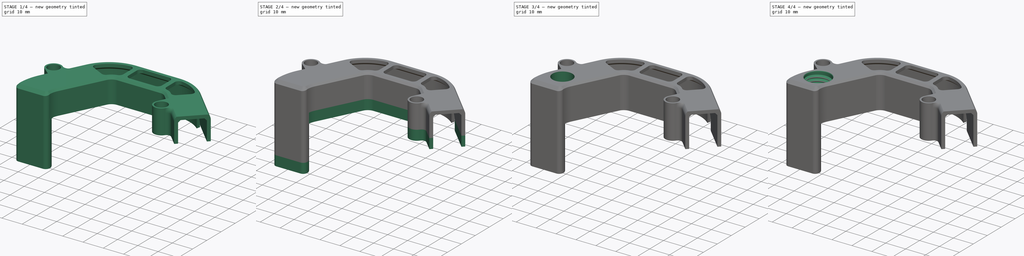
[diagram: build sequence overview — one tinted view per stage of 4, left to right]
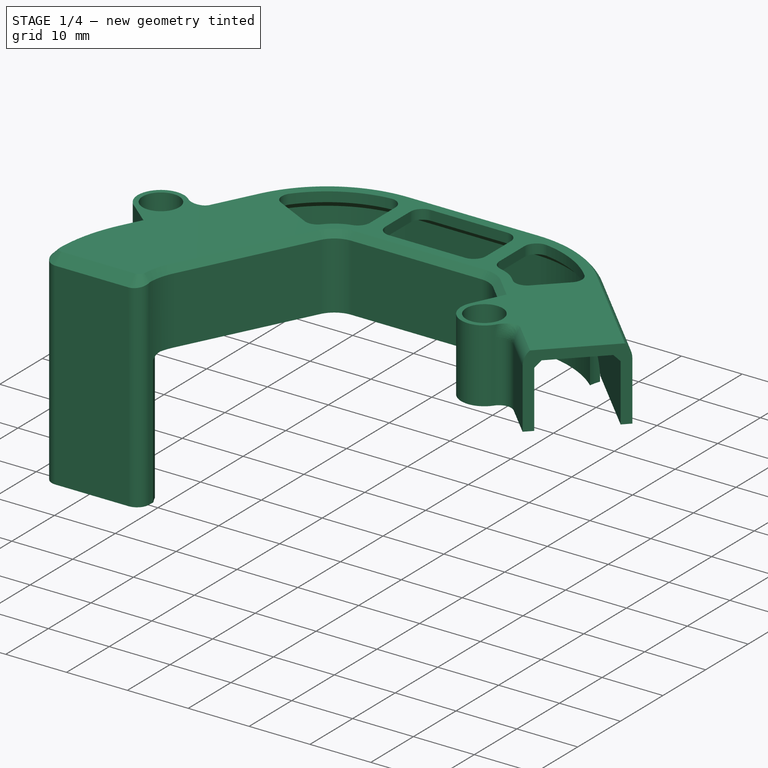
[diagram: stage 1 of 4 — iso view after this stage's code; geometry added in this stage tinted green]
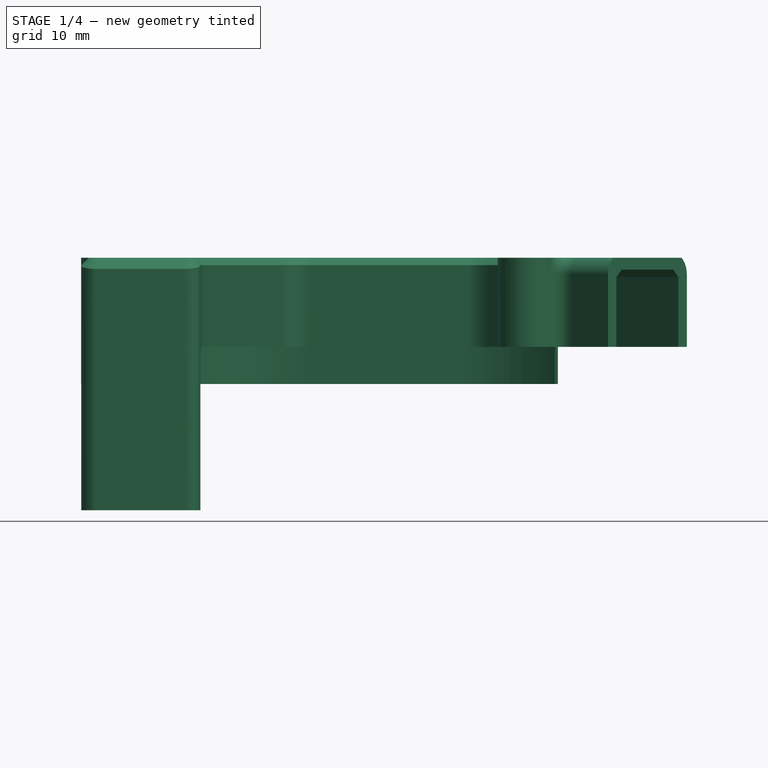
[diagram: stage 1 of 4 — front view after this stage's code; geometry added in this stage tinted green]
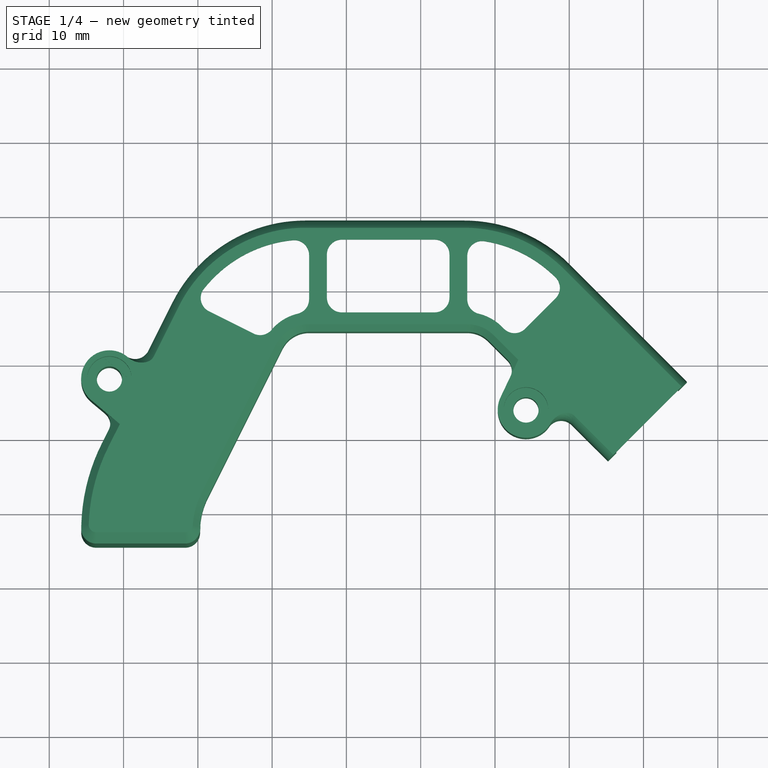
[diagram: stage 1 of 4 — top view after this stage's code; geometry added in this stage tinted green]
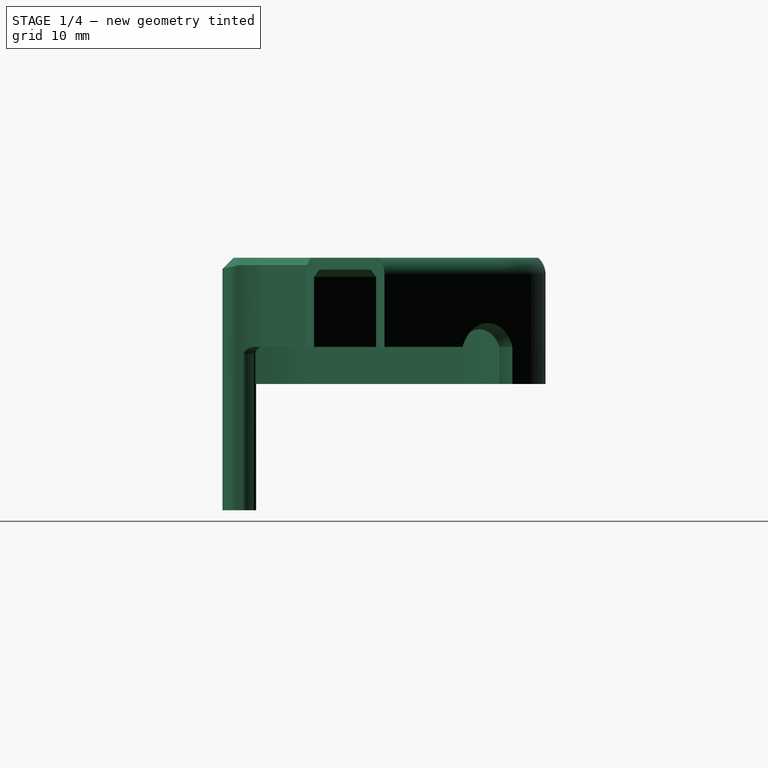
[diagram: stage 1 of 4 — right view after this stage's code; geometry added in this stage tinted green]
FCSTD DOCUMENT  (FreeCAD 0.19R24291 (Git))
Label: [a]_cable_cover_with_gland_mount
License: All rights reserved
LicenseURL: http://en.wikipedia.org/wiki/All_rights_reserved
objects: Sketcher::SketchObject×6, PartDesign::Pad×5, Part::Feature×1, PartDesign::FeatureBase×1, PartDesign::Pocket×1, PartDesign::Fillet×1, PartDesign::Body×1, Part::FeaturePython×1, Part::Cut×1
note: 25 computed .brp shape members not serialized (recipe doc carries the construction recipe); baked Part::Feature solids carry a one-line shape summary decoded from their .brp

FEATURE [Part::Feature] Part__Feature  label="Cable Cover"
  shape: bbox 82.57 x 45.15 x 35.3 mm, 175 faces (baked)
FEATURE [PartDesign::FeatureBase] BaseFeature
  BaseFeature = -> Part__Feature
FEATURE [Sketcher::SketchObject] Sketch
  ExternalGeometry = -> [BaseFeature]
  FullyConstrained = false
  MapMode = 5
  Placement = pos=(-2.443e-13,-1e-14,59) rot=(1,0,0;3.14159rad)
  Support = -> [BaseFeature]
  sketch-geometry (21):
    g0: ArcOfCircle CenterX=238.093 CenterY=-347.72 CenterZ=0 NormalX=0 NormalY=0 NormalZ=1 AngleXU=0 Radius=3.8 StartAngle=2.26666 EndAngle=5.34998
    g1: ArcOfCircle CenterX=236.213 CenterY=-341.733 CenterZ=0 NormalX=0 NormalY=0 NormalZ=1 AngleXU=0 Radius=2 StartAngle=5.40825 EndAngle=6.7475
    g2: ArcOfCircle CenterX=241.546 CenterY=-352.381 CenterZ=0 NormalX=0 NormalY=0 NormalZ=1 AngleXU=0 Radius=2 StartAngle=0.464313 EndAngle=2.20839
    g3: ArcOfCircle CenterX=241.75 CenterY=-358.029 CenterZ=0 NormalX=0 NormalY=0 NormalZ=1 AngleXU=0 Radius=5.13778 StartAngle=6.18844 EndAngle=7.30981
    g4: ArcOfCircle CenterX=264.473 CenterY=-349.03 CenterZ=0 NormalX=0 NormalY=0 NormalZ=1 AngleXU=0 Radius=20 StartAngle=3.63574 EndAngle=4.71239
    g5: ArcOfCircle CenterX=264.473 CenterY=-349.03 CenterZ=0 NormalX=0 NormalY=0 NormalZ=1 AngleXU=0 Radius=18.4 StartAngle=3.60591 EndAngle=4.71239
    g6: ArcOfCircle CenterX=260.301 CenterY=-327.302 CenterZ=0 NormalX=0 NormalY=0 NormalZ=1 AngleXU=0 Radius=26 StartAngle=3.26832 EndAngle=3.60591
    g7: ArcOfCircle CenterX=260.301 CenterY=-327.302 CenterZ=0 NormalX=0 NormalY=0 NormalZ=1 AngleXU=0 Radius=24.4 StartAngle=3.29134 EndAngle=3.60591
    g8: LineSegment StartX=237.054 StartY=-338.945 StartZ=0 EndX=238.002 EndY=-340.838 EndZ=0
    g9: LineSegment StartX=243.334 StartY=-351.485 StartZ=0 EndX=244.41 EndY=-353.634 EndZ=0
    g10: LineSegment StartX=248.021 StartY=-357.27 StartZ=0 EndX=238.484 EndY=-338.228 EndZ=0
    g11: LineSegment StartX=235.657 StartY=-344.804 StartZ=0 EndX=237.495 EndY=-343.268 EndZ=0
    g12: LineSegment StartX=234.509 StartY=-330.588 StartZ=0 EndX=234.373 EndY=-329.242 EndZ=0
    g13: ArcOfCircle CenterX=241.228 CenterY=-329.649 CenterZ=0 NormalX=0 NormalY=0 NormalZ=1 AngleXU=0 Radius=5.21641 StartAngle=3.13616 EndAngle=3.39197
    g14: LineSegment StartX=234.373 StartY=-329.242 StartZ=0 EndX=236.011 EndY=-329.621 EndZ=0
    g15: Circle CenterX=238.093 CenterY=-347.72 CenterZ=0 NormalX=0 NormalY=0 NormalZ=1 AngleXU=0 Radius=1.7
    g16: LineSegment StartX=264.473 StartY=-367.43 StartZ=0 EndX=285.857 EndY=-367.43 EndZ=0
    g17: LineSegment StartX=285.857 StartY=-369.03 StartZ=0 EndX=264.473 EndY=-369.03 EndZ=0
    g18: ArcOfCircle CenterX=285.857 CenterY=-349.03 CenterZ=0 NormalX=0 NormalY=0 NormalZ=1 AngleXU=0 Radius=18.4 StartAngle=4.71239 EndAngle=5.43634
    g19: ArcOfCircle CenterX=285.857 CenterY=-349.03 CenterZ=0 NormalX=0 NormalY=0 NormalZ=1 AngleXU=0 Radius=20 StartAngle=4.71239 EndAngle=5.39427
    g20: ArcOfCircle CenterX=303.173 CenterY=-362.507 CenterZ=0 NormalX=0 NormalY=0 NormalZ=1 AngleXU=0 Radius=5.13778 StartAngle=3.20161 EndAngle=3.55219
  constraints (50):
    c: Coincident(g0,g-3)
    c: Coincident(g0,g-8)
    c: Tangent(g0,g-3)
    c: Coincident(g1,g-4)
    c: Coincident(g1,g-4)
    c: Tangent(g1,g-4)
    c: Coincident(g2,g0)
    c: Coincident(g2,g-9)
    c: Tangent(g2,g-8)
    c: Coincident(g3,g-10)
    c: Coincident(g3,g-11)
    c: Tangent(g3,g-10)
    c: Coincident(g4,g3)
    c: Coincident(g5,g-12)
    c: Coincident(g6,g-5)
    c: Coincident(g6,g-5)
    c: Tangent(g6,g-5)
    c: Coincident(g7,g-7)
    c: Coincident(g7,g-6)
    c: Tangent(g7,g-6)
    c: Coincident(g8,g6)
    c: Coincident(g8,g1)
    c: Coincident(g9,g2)
    c: Coincident(g9,g3)
    c: Coincident(g10,g5)
    c: Coincident(g10,g7)
    c: Tangent(g4,g-11) = -1.5708
    c: Tangent(g5,g-12) = -1.5708
    c: Coincident(g11,g0)
    c: Coincident(g12,g6)
    c: Coincident(g12,g-13)
    c: Coincident(g13,g7)
    c: Coincident(g13,g-14)
    c: Coincident(g14,g12)
    c: Coincident(g14,g13)
    c: Coincident(g11,g1)
    c: Coincident(g15,g0)
    c: Radius(g15) = 1.7
    c: Coincident(g16,g5)
    c: Coincident(g16,g-18)
    c: Coincident(g17,g-19)
    c: Coincident(g17,g4)
    c: Coincident(g18,g16)
    c: Coincident(g18,g-18)
    c: Tangent(g18,g-18)
    c: Coincident(g19,g17)
    c: Coincident(g19,g-19)
    c: Coincident(g20,g19)
    c: Coincident(g20,g18)
    c: Tangent(g20,g-17)
FEATURE [PartDesign::Pad] Pad
  BaseFeature = -> BaseFeature
  Direction = (1,1,1)
  Length = 5
  Length2 = 100
  Profile = -> Sketch
  Type = 0
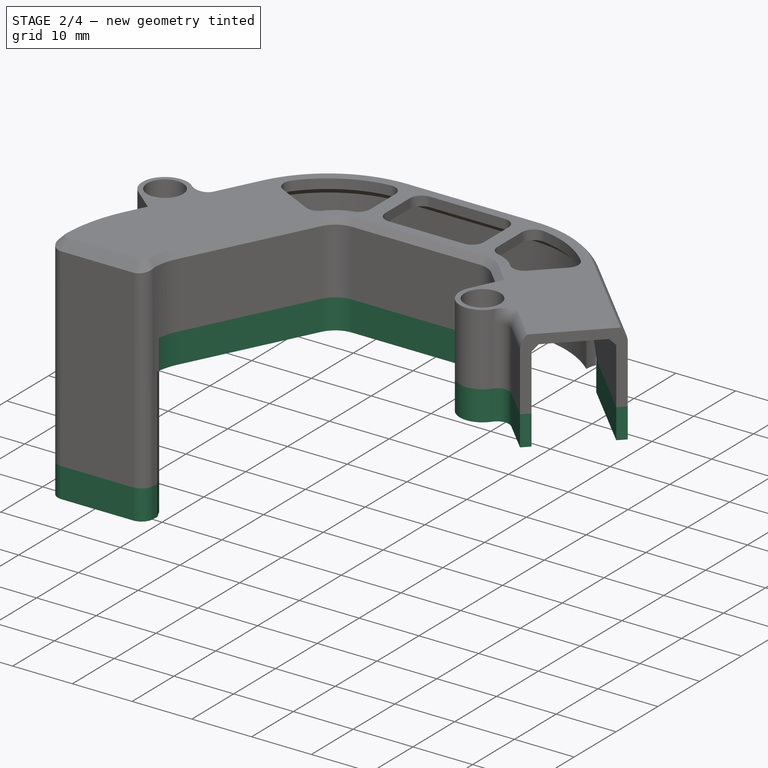
[diagram: stage 2 of 4 — iso view after this stage's code; geometry added in this stage tinted green]
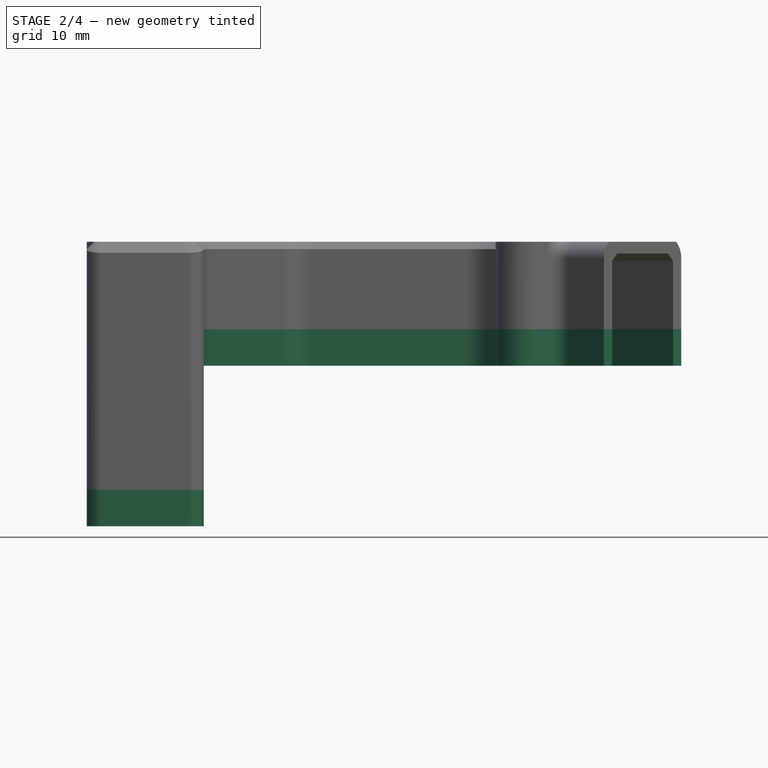
[diagram: stage 2 of 4 — front view after this stage's code; geometry added in this stage tinted green]
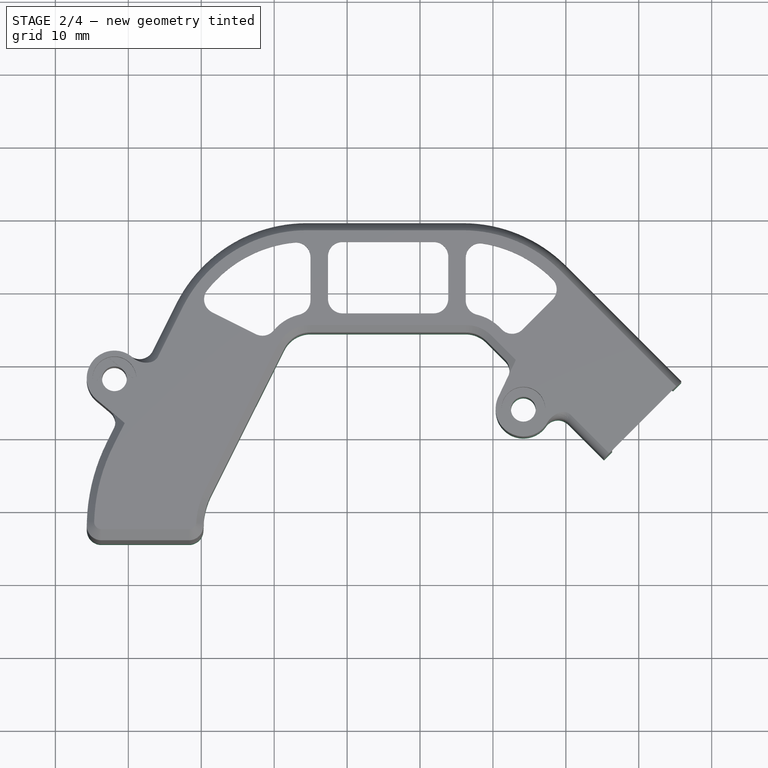
[diagram: stage 2 of 4 — top view after this stage's code; geometry added in this stage tinted green]
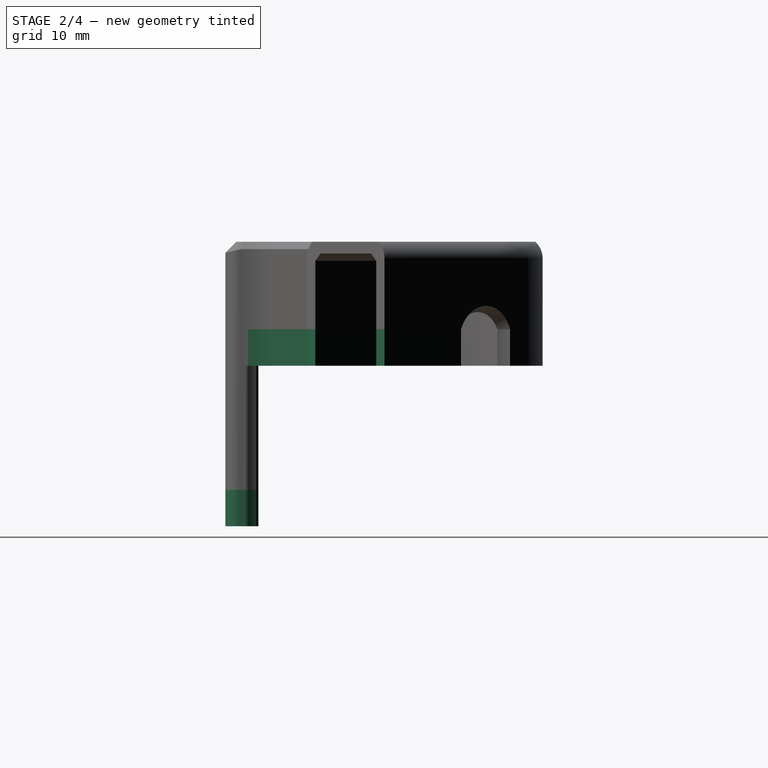
[diagram: stage 2 of 4 — right view after this stage's code; geometry added in this stage tinted green]
FEATURE [Sketcher::SketchObject] Sketch001
  ExternalGeometry = -> [Pad]
  FullyConstrained = true
  MapMode = 5
  Placement = pos=(-2.443e-13,-1e-14,59) rot=(1,0,0;3.14159rad)
  Support = -> [Pad]
  sketch-geometry (4):
    g0: LineSegment StartX=305.329 StartY=-357.843 StartZ=0 EndX=315.828 EndY=-347.343 EndZ=0
    g1: LineSegment StartX=315.828 StartY=-347.343 StartZ=0 EndX=314.697 EndY=-346.212 EndZ=0
    g2: LineSegment StartX=314.697 StartY=-346.212 StartZ=0 EndX=303.528 EndY=-357.381 EndZ=0
    g3: ArcOfCircle CenterX=303.173 CenterY=-362.507 CenterZ=0 NormalX=0 NormalY=0 NormalZ=1 AngleXU=0 Radius=5.13778 StartAngle=1.1379 EndAngle=1.50179
  constraints (9):
    c: Coincident(g0,g-3)
    c: Coincident(g0,g-4)
    c: Coincident(g1,g0)
    c: Coincident(g1,g-4)
    c: Coincident(g2,g1)
    c: Coincident(g2,g-3)
    c: Coincident(g3,g2)
    c: Coincident(g3,g0)
    c: Tangent(g3,g-3)
FEATURE [PartDesign::Pad] Pad001
  BaseFeature = -> Pad
  Direction = (1,1,1)
  Length = 5
  Length2 = 100
  Profile = -> Sketch001
  Type = 0
FEATURE [Sketcher::SketchObject] Sketch002
  ExternalGeometry = -> [Pad001]
  FullyConstrained = false
  MapMode = 5
  Placement = pos=(-2.443e-13,-1e-14,59) rot=(1,0,0;3.14159rad)
  Support = -> [Pad001]
  sketch-geometry (21):
    g0: ArcOfCircle CenterX=261.73 CenterY=-326.962 CenterZ=0 NormalX=0 NormalY=0 NormalZ=1 AngleXU=0 Radius=13.0637 StartAngle=3.29705 EndAngle=3.45284
    g1: ArcOfCircle CenterX=260.699 CenterY=-327.189 CenterZ=0 NormalX=0 NormalY=0 NormalZ=1 AngleXU=0 Radius=10.4066 StartAngle=3.23621 EndAngle=3.59845
    g2: LineSegment StartX=248.824 StartY=-328.985 StartZ=0 EndX=250.339 EndY=-328.172 EndZ=0
    g3: LineSegment StartX=249.929 StartY=-332.496 StartZ=0 EndX=259.966 EndY=-352.538 EndZ=0
    g4: LineSegment StartX=261.397 StartY=-351.821 StartZ=0 EndX=251.36 EndY=-331.78 EndZ=0
    g5: LineSegment StartX=264.973 StartY=-354.03 StartZ=0 EndX=286.272 EndY=-354.03 EndZ=0
    g6: LineSegment StartX=286.272 StartY=-355.63 StartZ=0 EndX=264.973 EndY=-355.63 EndZ=0
    g7: LineSegment StartX=289.1 StartY=-352.858 StartZ=0 EndX=291.687 EndY=-350.271 EndZ=0
    g8: LineSegment StartX=292.08 StartY=-348 StartZ=0 EndX=290.739 EndY=-345.171 EndZ=0
    g9: LineSegment StartX=300.334 StartY=-341.625 StartZ=0 EndX=305.222 EndY=-336.737 EndZ=0
    g10: LineSegment StartX=305.222 StartY=-336.737 StartZ=0 EndX=306.353 EndY=-337.868 EndZ=0
    g11: LineSegment StartX=306.353 StartY=-337.868 StartZ=0 EndX=290.231 EndY=-353.99 EndZ=0
    g12: ArcOfCircle CenterX=298.919 CenterY=-340.211 CenterZ=0 NormalX=0 NormalY=0 NormalZ=1 AngleXU=0 Radius=2 StartAngle=3.75371 EndAngle=5.49779
    g13: ArcOfCircle CenterX=294.172 CenterY=-343.543 CenterZ=0 NormalX=0 NormalY=0 NormalZ=1 AngleXU=0 Radius=3.8 StartAngle=0.612119 EndAngle=3.58427
    g14: ArcOfCircle CenterX=290.273 CenterY=-348.857 CenterZ=0 NormalX=0 NormalY=0 NormalZ=1 AngleXU=0 Radius=2 StartAngle=5.49779 EndAngle=6.72587
    g15: ArcOfCircle CenterX=286.272 CenterY=-350.03 CenterZ=0 NormalX=0 NormalY=0 NormalZ=1 AngleXU=0 Radius=4 StartAngle=4.71239 EndAngle=5.49779
    g16: ArcOfCircle CenterX=286.272 CenterY=-350.03 CenterZ=0 NormalX=0 NormalY=0 NormalZ=1 AngleXU=0 Radius=5.6 StartAngle=4.71239 EndAngle=5.49779
    g17: ArcOfCircle CenterX=264.973 CenterY=-350.03 CenterZ=0 NormalX=0 NormalY=0 NormalZ=1 AngleXU=0 Radius=5.6 StartAngle=3.60591 EndAngle=4.71239
    g18: ArcOfCircle CenterX=264.973 CenterY=-350.03 CenterZ=0 NormalX=0 NormalY=0 NormalZ=1 AngleXU=0 Radius=4 StartAngle=3.60591 EndAngle=4.71239
    g19: ArcOfCircle CenterX=260.301 CenterY=-327.302 CenterZ=0 NormalX=0 NormalY=0 NormalZ=1 AngleXU=0 Radius=11.6 StartAngle=3.4627 EndAngle=3.60591
    g20: Circle CenterX=294.172 CenterY=-343.543 CenterZ=0 NormalX=0 NormalY=0 NormalZ=1 AngleXU=0 Radius=1.7
  constraints (49):
    c: Coincident(g0,g-15)
    c: Coincident(g0,g-13)
    c: Coincident(g1,g-16)
    c: Coincident(g1,g-14)
    c: Coincident(g2,g0)
    c: Coincident(g2,g1)
    c: Coincident(g3,g-13)
    c: Coincident(g3,g-10)
    c: Coincident(g4,g-14)
    c: Coincident(g4,g1)
    c: Coincident(g5,g-9)
    c: Coincident(g5,g-8)
    c: Coincident(g6,g-11)
    c: Coincident(g6,g-10)
    c: Coincident(g7,g-8)
    c: Coincident(g7,g-7)
    c: Coincident(g8,g-7)
    c: Coincident(g8,g-4)
    c: Coincident(g9,g-6)
    c: Coincident(g10,g9)
    c: Coincident(g10,g-12)
    c: Coincident(g11,g10)
    c: Coincident(g11,g-11)
    c: Coincident(g9,g-12)
    c: Coincident(g12,g-6)
    c: Coincident(g12,g9)
    c: Coincident(g13,g12)
    c: Coincident(g13,g8)
    c: Tangent(g13,g-4)
    c: Coincident(g14,g7)
    c: Coincident(g14,g8)
    c: Tangent(g14,g-7)
    c: Coincident(g15,g7)
    c: Coincident(g15,g5)
    c: Tangent(g15,g-8)
    c: Coincident(g16,g6)
    c: Coincident(g16,g11)
    c: Tangent(g16,g-11)
    c: Coincident(g17,g3)
    c: Coincident(g17,g6)
    c: Coincident(g18,g5)
    c: Coincident(g18,g4)
    c: Tangent(g18,g-9)
    c: Coincident(g19,g0)
    c: Coincident(g19,g3)
    c: Tangent(g19,g-13)
    c: Tangent(g-10,g17)
    c: Coincident(g20,g13)
    c: Tangent(g20,g-3)
FEATURE [PartDesign::Pad] Pad002
  BaseFeature = -> Pad001
  Direction = (1,1,1)
  Length = 5
  Length2 = 100
  Profile = -> Sketch002
  Type = 0
FEATURE [Sketcher::SketchObject] Sketch003
  ExternalGeometry = -> [Pad002]
  FullyConstrained = false
  MapMode = 5
  Placement = pos=(-1.532e-13,-6.3e-15,37) rot=(1,0,0;3.14159rad)
  Support = -> [Pad002]
  sketch-geometry (21):
    g0: ArcOfCircle CenterX=260.301 CenterY=-327.302 CenterZ=0 NormalX=0 NormalY=0 NormalZ=1 AngleXU=0 Radius=26 StartAngle=3.1511 EndAngle=3.21628
    g1: ArcOfCircle CenterX=234.772 CenterY=-329.212 CenterZ=0 NormalX=0 NormalY=0 NormalZ=1 AngleXU=0 Radius=0.4 StartAngle=3.21628 EndAngle=4.51092
    g2: ArcOfCircle CenterX=234.452 CenterY=-330.779 CenterZ=0 NormalX=0 NormalY=0 NormalZ=1 AngleXU=0 Radius=1.2 StartAngle=0.897216 EndAngle=1.36932
    g3: ArcOfCircle CenterX=235.613 CenterY=-329.659 CenterZ=0 NormalX=0 NormalY=0 NormalZ=1 AngleXU=0 Radius=0.4 StartAngle=4.03881 EndAngle=6.37838
    g4: ArcOfCircle CenterX=236.972 CenterY=-329.13 CenterZ=0 NormalX=0 NormalY=0 NormalZ=1 AngleXU=0 Radius=1 StartAngle=1.5708 EndAngle=3.2198
    g5: ArcOfCircle CenterX=240.671 CenterY=-329.13 CenterZ=0 NormalX=0 NormalY=0 NormalZ=1 AngleXU=0 Radius=1 StartAngle=0.523599 EndAngle=1.5708
    g6: ArcOfCircle CenterX=242.403 CenterY=-328.13 CenterZ=0 NormalX=0 NormalY=0 NormalZ=1 AngleXU=0 Radius=1 StartAngle=3.66519 EndAngle=5.75959
    g7: ArcOfCircle CenterX=244.135 CenterY=-329.13 CenterZ=0 NormalX=0 NormalY=0 NormalZ=1 AngleXU=0 Radius=1 StartAngle=1.5708 EndAngle=2.61799
    g8: ArcOfCircle CenterX=247.834 CenterY=-329.13 CenterZ=0 NormalX=0 NormalY=0 NormalZ=1 AngleXU=0 Radius=1 StartAngle=0.145606 EndAngle=1.5708
    g9: ArcOfCircle CenterX=249.332 CenterY=-329.563 CenterZ=0 NormalX=0 NormalY=0 NormalZ=1 AngleXU=0 Radius=0.4 StartAngle=3.34492 EndAngle=5.93406
    g10: ArcOfCircle CenterX=249.542 CenterY=-328.242 CenterZ=0 NormalX=0 NormalY=0 NormalZ=1 AngleXU=0 Radius=0.8 StartAngle=5.71333 EndAngle=6.37035
    g11: ArcOfCircle CenterX=255.665 CenterY=-332.009 CenterZ=0 NormalX=0 NormalY=0 NormalZ=1 AngleXU=0 Radius=6.38891 StartAngle=2.59234 EndAngle=2.77187
    g12: ArcOfCircle CenterX=236.302 CenterY=-327.53 CenterZ=0 NormalX=0 NormalY=0 NormalZ=1 AngleXU=0 Radius=2 StartAngle=1.5708 EndAngle=3.1511
    g13: ArcOfCircle CenterX=248.303 CenterY=-327.53 CenterZ=0 NormalX=0 NormalY=0 NormalZ=1 AngleXU=0 Radius=2 StartAngle=0.019014 EndAngle=1.5708
    g14: LineSegment StartX=236.302 StartY=-325.53 StartZ=0 EndX=248.303 EndY=-325.53 EndZ=0
    g15: LineSegment StartX=250.339 StartY=-328.172 StartZ=0 EndX=250.303 EndY=-327.492 EndZ=0
    g16: LineSegment StartX=244.135 StartY=-328.13 StartZ=0 EndX=247.834 EndY=-328.13 EndZ=0
    g17: LineSegment StartX=240.671 StartY=-328.13 StartZ=0 EndX=236.972 EndY=-328.13 EndZ=0
    g18: LineSegment StartX=248.824 StartY=-328.985 StartZ=0 EndX=248.94 EndY=-329.644 EndZ=0
    g19: LineSegment StartX=236.011 StartY=-329.621 StartZ=0 EndX=235.975 EndY=-329.208 EndZ=0
    g20: LineSegment StartX=235.201 StartY=-329.842 StartZ=0 EndX=235.364 EndY=-329.972 EndZ=0
  constraints (49):
    c: Coincident(g0,g-14)
    c: Coincident(g0,g-14)
    c: Tangent(g0,g-14)
    c: Coincident(g1,g0)
    c: Coincident(g1,g-13)
    c: Tangent(g1,g-12)
    c: Coincident(g2,g1)
    c: Coincident(g2,g-13)
    c: Tangent(g2,g-13)
    c: Coincident(g3,g-3)
    c: Coincident(g3,g-3)
    c: Coincident(g4,g-4)
    c: Coincident(g4,g-4)
    c: Coincident(g5,g-5)
    c: Tangent(g5,g-5) = -1.5708
    c: Coincident(g6,g5)
    c: Coincident(g6,g-15)
    c: Tangent(g6,g-15)
    c: Coincident(g7,g6)
    c: Coincident(g7,g-6)
    c: Tangent(g7,g-6)
    c: Coincident(g8,g-7)
    c: Coincident(g8,g-7)
    c: Coincident(g9,g-8)
    c: Coincident(g9,g-8)
    c: Coincident(g10,g-9)
    c: Coincident(g10,g-9)
    c: Tangent(g10,g-9)
    c: Coincident(g11,g9)
    c: Coincident(g11,g10)
    c: Coincident(g12,g0)
    c: Coincident(g12,g-11)
    c: Tangent(g12,g-11)
    c: Coincident(g13,g-10)
    c: Coincident(g13,g-10)
    c: Coincident(g14,g12)
    c: Coincident(g14,g13)
    c: Coincident(g15,g10)
    c: Coincident(g15,g13)
    c: Coincident(g16,g7)
    c: Coincident(g16,g8)
    c: Coincident(g17,g5)
    c: Coincident(g17,g4)
    c: Coincident(g18,g8)
    c: Coincident(g18,g9)
    c: Coincident(g19,g3)
    c: Coincident(g19,g4)
    c: Coincident(g20,g2)
    c: Coincident(g20,g3)
FEATURE [PartDesign::Pad] Pad003
  BaseFeature = -> Pad002
  Direction = (1,1,1)
  Length = 5
  Length2 = 100
  Profile = -> Sketch003
  Type = 0
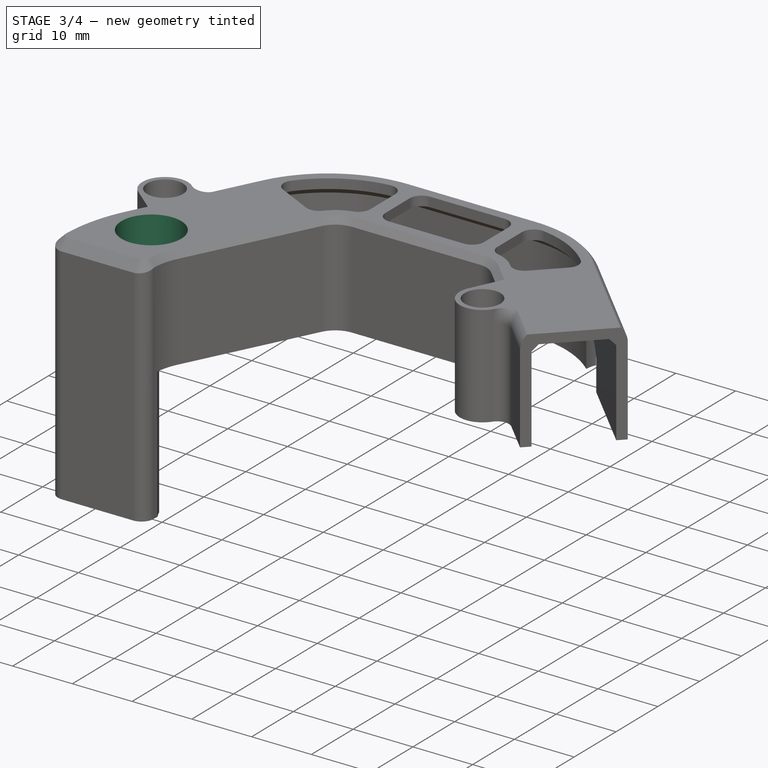
[diagram: stage 3 of 4 — iso view after this stage's code; geometry added in this stage tinted green]
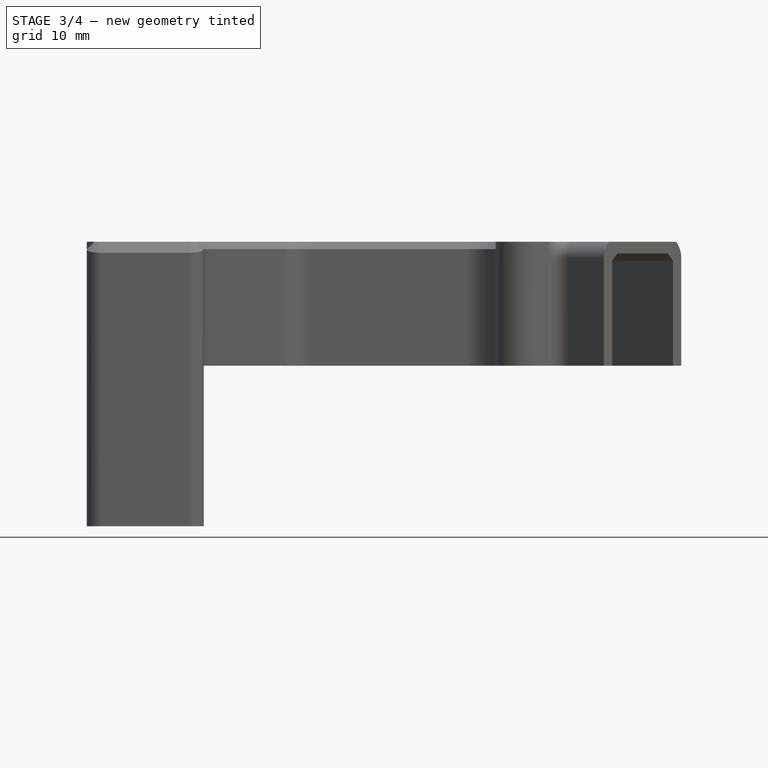
[diagram: stage 3 of 4 — front view after this stage's code; geometry added in this stage tinted green]
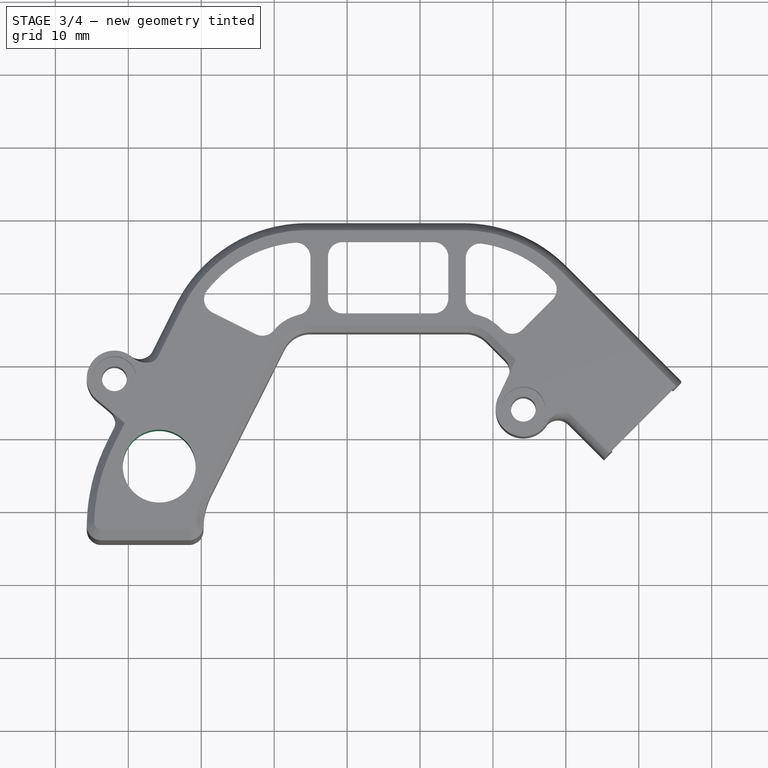
[diagram: stage 3 of 4 — top view after this stage's code; geometry added in this stage tinted green]
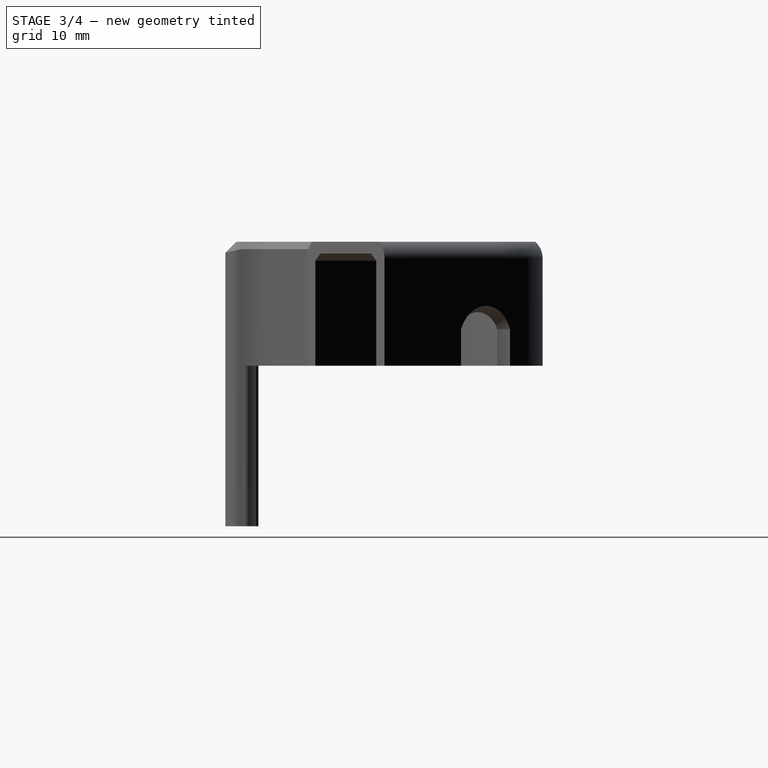
[diagram: stage 3 of 4 — right view after this stage's code; geometry added in this stage tinted green]
FEATURE [Sketcher::SketchObject] Sketch004
  ExternalGeometry = -> [Pad003]
  FullyConstrained = true
  MapMode = 5
  Placement = pos=(-3.526e-13,0,69.4) rot=(1,0,0;3.14159rad)
  Support = -> [Pad003]
  sketch-geometry (8):
    g0: ArcOfCircle CenterX=260.301 CenterY=-327.302 CenterZ=0 NormalX=0 NormalY=0 NormalZ=1 AngleXU=0 Radius=24.4 StartAngle=3.2198 EndAngle=3.60591
    g1: ArcOfCircle CenterX=260.301 CenterY=-327.302 CenterZ=0 NormalX=0 NormalY=0 NormalZ=1 AngleXU=0 Radius=11.6 StartAngle=3.29069 EndAngle=3.60591
    g2: LineSegment StartX=235.975 StartY=-328.13 StartZ=0 EndX=248.83 EndY=-328.13 EndZ=0
    g3: LineSegment StartX=235.975 StartY=-329.208 StartZ=0 EndX=235.975 EndY=-328.13 EndZ=0
    g4: LineSegment StartX=248.83 StartY=-329.025 StartZ=0 EndX=248.83 EndY=-328.13 EndZ=0
    g5: LineSegment StartX=238.484 StartY=-338.228 StartZ=0 EndX=240.939 EndY=-343.13 EndZ=0
    g6: LineSegment StartX=249.929 StartY=-332.496 StartZ=0 EndX=255.255 EndY=-343.13 EndZ=0
    g7: LineSegment StartX=255.255 StartY=-343.13 StartZ=0 EndX=240.939 EndY=-343.13 EndZ=0
  constraints (21):
    c: Coincident(g0,g-3)
    c: Coincident(g0,g-8)
    c: Tangent(g0,g-3)
    c: Coincident(g1,g-4)
    c: Coincident(g1,g-5)
    c: Tangent(g1,g-4)
    c: Tangent(g-6,g2) = 1.5708
    c: Coincident(g3,g0)
    c: Coincident(g3,g2)
    c: Coincident(g4,g1)
    c: Coincident(g4,g2)
    c: Vertical(g4)
    c: Perpendicular(g2,g3)
    c: Coincident(g5,g0)
    c: PointOnObject(g5,g-8)
    c: Coincident(g6,g1)
    c: PointOnObject(g6,g-5)
    c: Coincident(g7,g6)
    c: Coincident(g7,g5)
    c: DistanceY(g5,g2) = 15
    c: Horizontal(g7)
FEATURE [PartDesign::Pad] Pad004
  BaseFeature = -> Pad003
  Direction = (1,1,1)
  Length = 10
  Length2 = 100
  Profile = -> Sketch004
  Type = 0
FEATURE [Sketcher::SketchObject] Sketch005
  FullyConstrained = false
  MapMode = 5
  Placement = pos=(-2.973e-13,2.1e-15,59.4) rot=(1,0,0;3.14159rad)
  Support = -> [Pad004]
  sketch-geometry (1):
    g0: Circle CenterX=244.236 CenterY=-335.683 CenterZ=0 NormalX=0 NormalY=0 NormalZ=1 AngleXU=0 Radius=5
  constraints (1):
    c: Radius(g0) = 5
FEATURE [PartDesign::Pocket] Pocket
  BaseFeature = -> Pad004
  Length = 20
  Length2 = 100
  Profile = -> Sketch005
  Type = 0
FEATURE [PartDesign::Fillet] Fillet
  Base = -> Pocket [Edge56]
  BaseFeature = -> Pocket
  Radius = 1
  SupportTransform = false
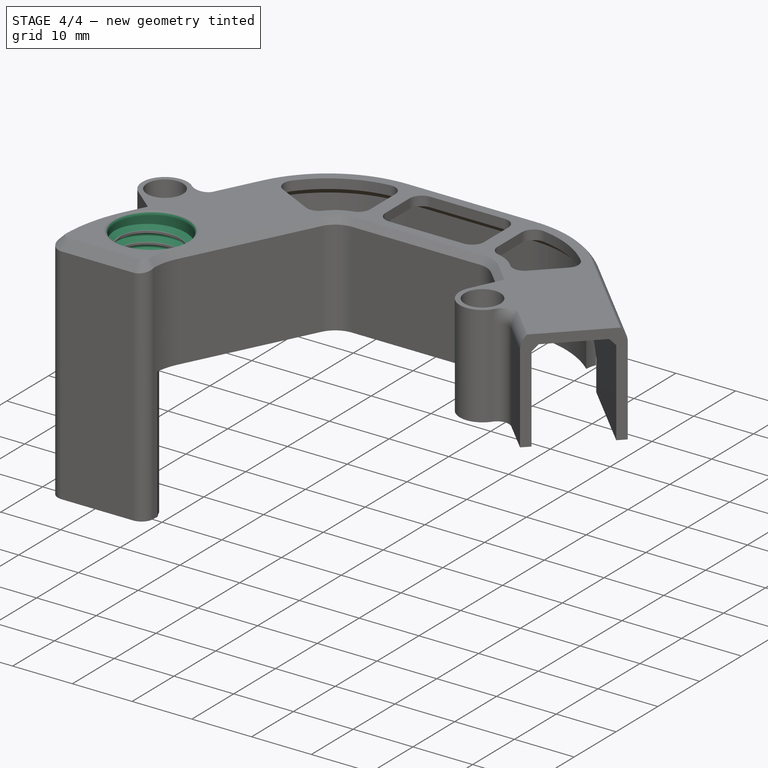
[diagram: stage 4 of 4 — iso view after this stage's code; geometry added in this stage tinted green]
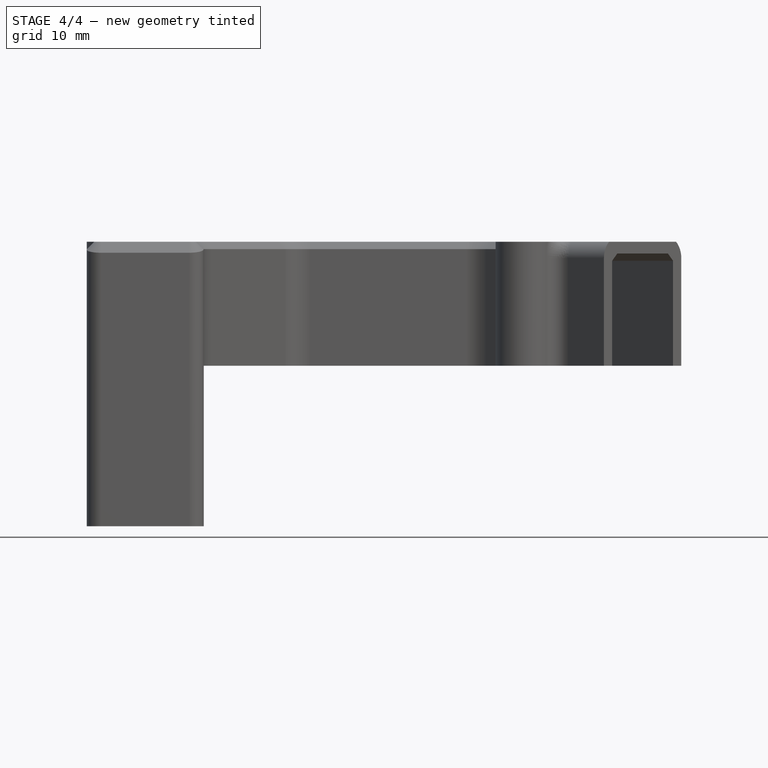
[diagram: stage 4 of 4 — front view after this stage's code; geometry added in this stage tinted green]
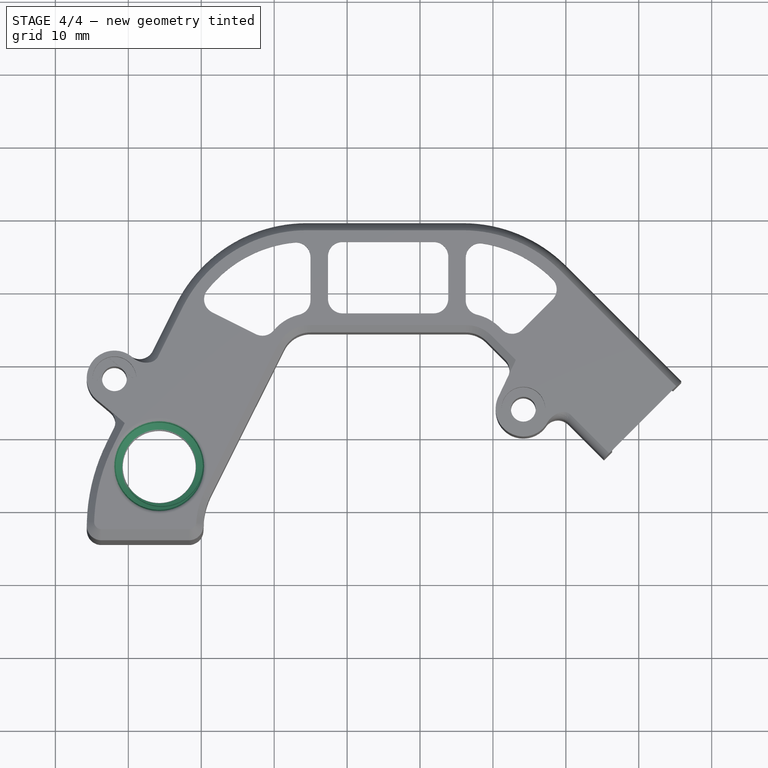
[diagram: stage 4 of 4 — top view after this stage's code; geometry added in this stage tinted green]
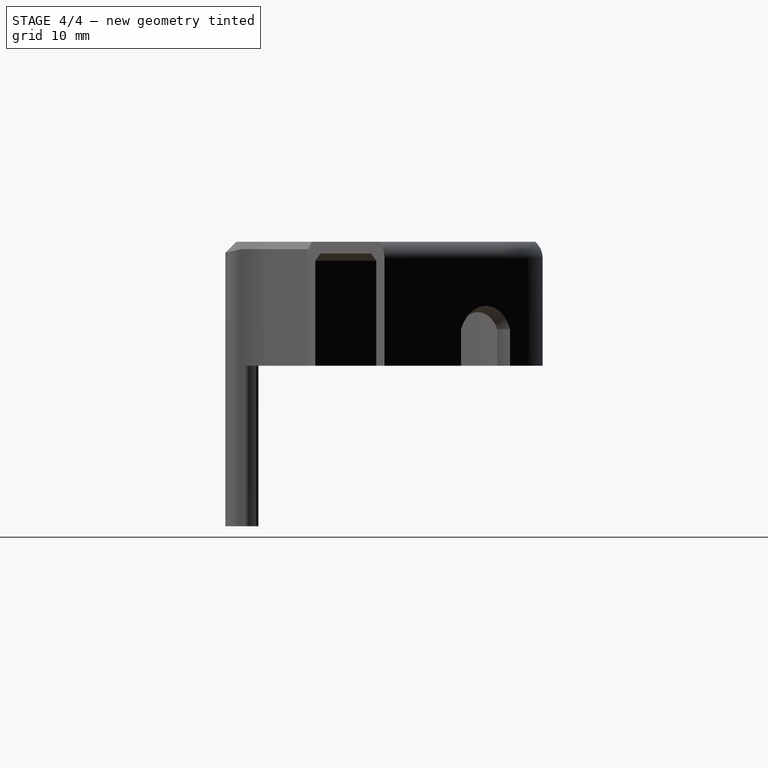
[diagram: stage 4 of 4 — right view after this stage's code; geometry added in this stage tinted green]
FEATURE [PartDesign::Body] Body
  BaseFeature = -> Part__Feature
  Group = -> [BaseFeature,Sketch,Pad,Sketch001,Pad001,Sketch002,Pad002,Sketch003,Pad003,Sketch004,Pad004,Sketch005,Pocket,Fillet]
  Origin = -> Origin
  Tip = -> Fillet
FEATURE [Part::FeaturePython] Screw  label="M12x20-Screw"  # Fasteners workbench fastener (typed FeaturePython)
  Placement = pos=(244.236,335.683,71) rot=(0,0,1;0rad)
  baseObject = -> Body [Edge164]
  diameter = 10
  invert = true
  length = 0
  lengthCustom = 20
  matchOuter = false
  offset = 0
  thread = true
  type = 33
FEATURE [Part::Cut] Cut
  Base = -> Fillet
  Tool = -> Screw
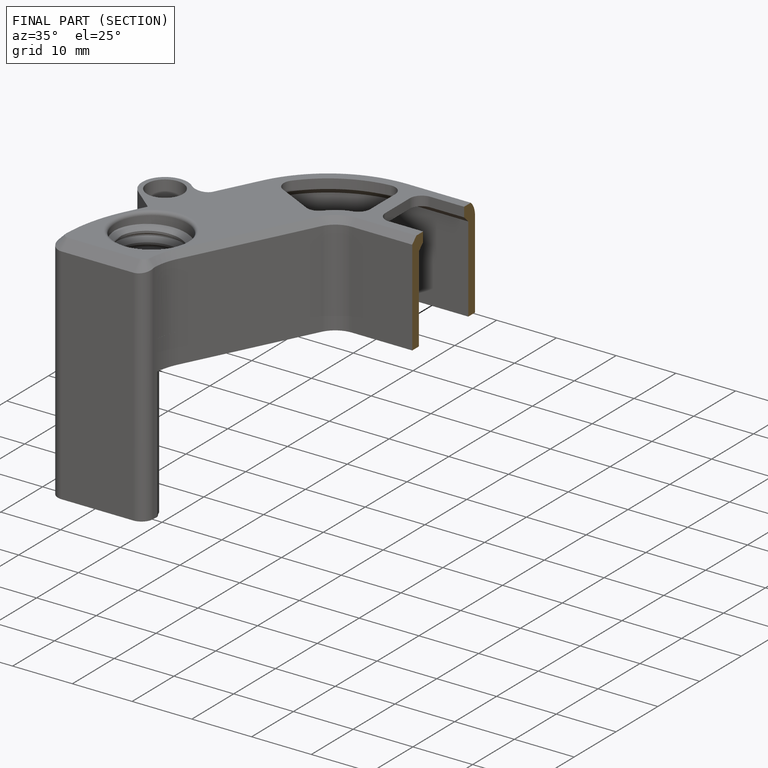
[diagram: finished part — half-section view (interior)]
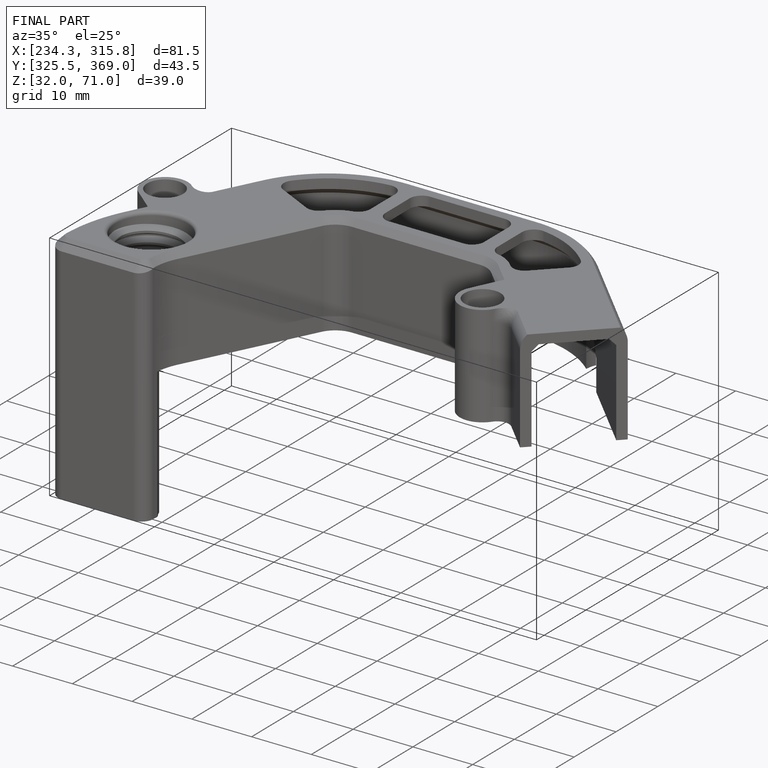
[diagram: finished part — iso view with bounding-box wireframe]
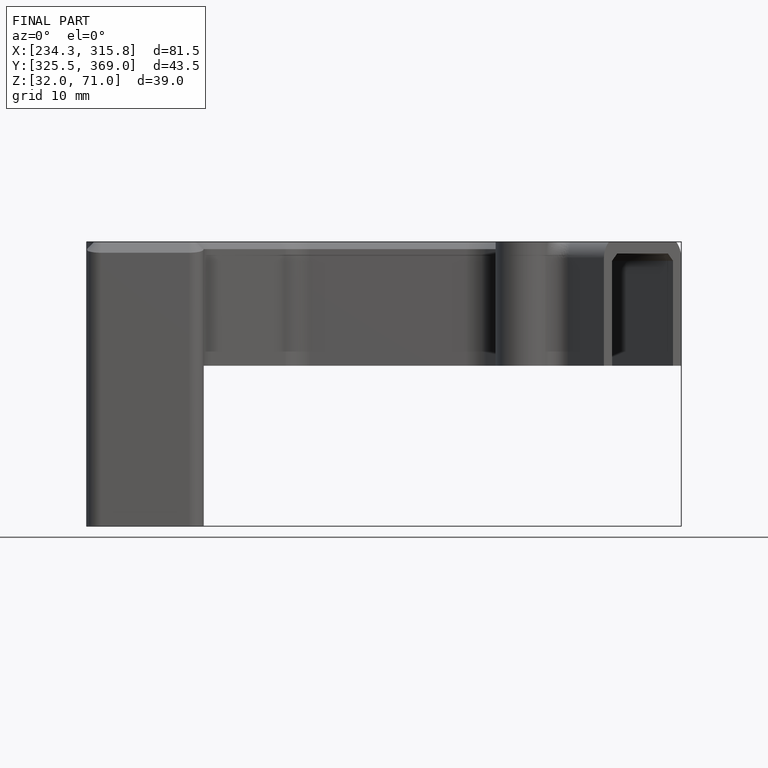
[diagram: finished part — front view with bounding-box wireframe]
